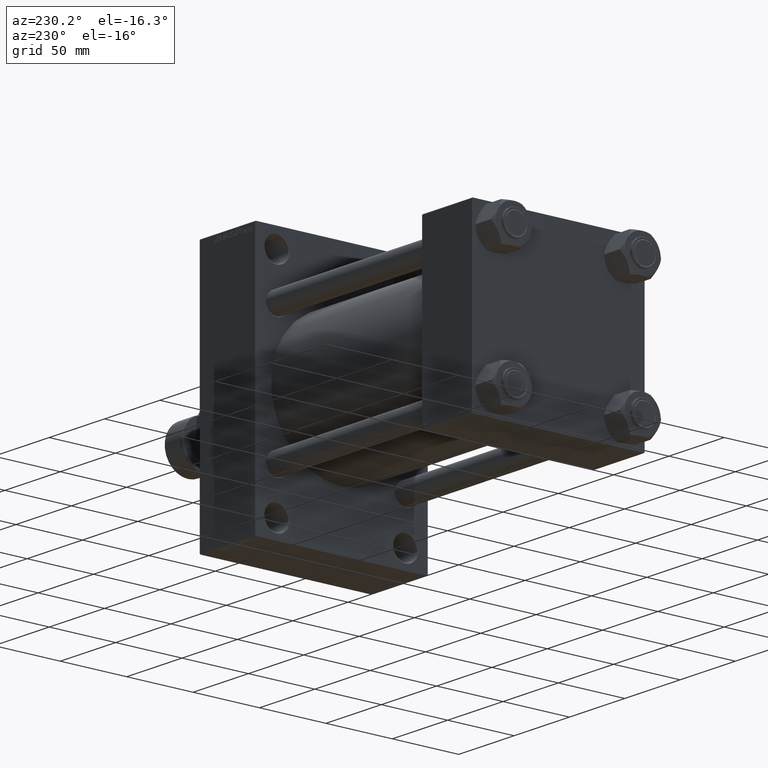
[diagram: clean part render]
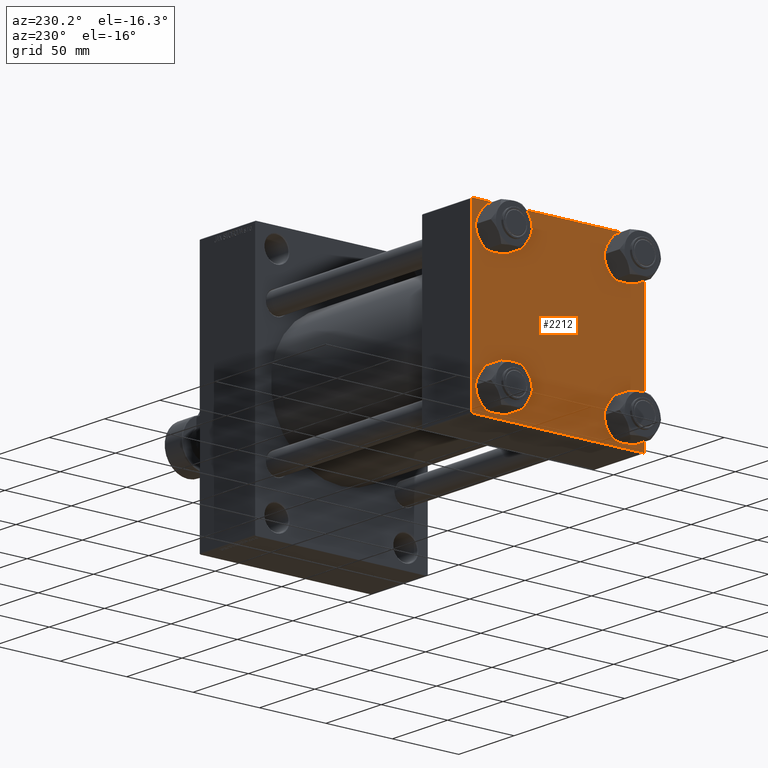
[diagram: same view with one face highlighted and labeled with its STEP entity id]
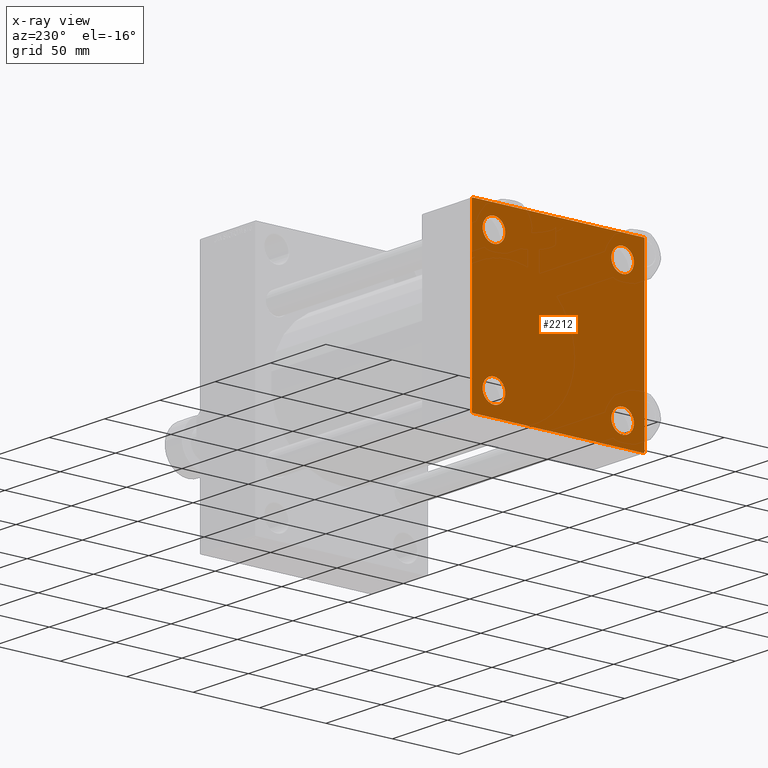
[diagram: x-ray of the same camera — body ghosted, the highlighted face saturated]
A machine part, auxiliary view. The second image highlights one B-rep face of the part: STEP entity #2212.
The next image is the same camera in x-ray: the body ghosted, the highlighted face saturated — about 0% of this face is hidden behind the body in this view.
In plain terms, the highlighted planar face has unit normal (-1, 0, 0).
Its self-contained STEP definition (entity closure, byte-faithful):
#187 = CARTESIAN_POINT ( 'NONE',  ( 0.000000000000000000, 65.00000000000000000, 65.00000000000001421 ) ) ;
#310 = EDGE_LOOP ( 'NONE', ( #4905, #21595 ) ) ;
#564 = CARTESIAN_POINT ( 'NONE',  ( 0.000000000000000000, 64.74999999999998579, 64.74999999999998579 ) ) ;
#643 = DIRECTION ( 'NONE',  ( -0.000000000000000000, -0.7071067811865474617, -0.7071067811865474617 ) ) ;
#762 = CARTESIAN_POINT ( 'NONE',  ( 0.000000000000000000, -48.44999999999999574, 39.95000000000001705 ) ) ;
#1064 = ORIENTED_EDGE ( 'NONE', *, *, #29486, .T. ) ;
#1510 = VECTOR ( 'NONE', #27750, 1000.000000000000000 ) ;
#2174 = DIRECTION ( 'NONE',  ( 0.000000000000000000, 0.000000000000000000, 1.000000000000000000 ) ) ;
#2212 = ADVANCED_FACE ( 'NONE', ( #14462, #44852, #44142, #25655, #41181 ), #7847, .T. ) ;
#2849 = ORIENTED_EDGE ( 'NONE', *, *, #7604, .F. ) ;
#3116 = VERTEX_POINT ( 'NONE', #7634 ) ;
#3293 = LINE ( 'NONE', #40262, #6403 ) ;
#3972 = EDGE_CURVE ( 'NONE', #7778, #38552, #16832, .T. ) ;
#4086 = LINE ( 'NONE', #7724, #42636 ) ;
#4495 = DIRECTION ( 'NONE',  ( 1.000000000000000000, -0.000000000000000000, 0.000000000000000000 ) ) ;
#4550 = CARTESIAN_POINT ( 'NONE',  ( 0.000000000000000000, 64.49999999999997158, -64.99999999999998579 ) ) ;
#4605 = CARTESIAN_POINT ( 'NONE',  ( -0.000000000000000000, -64.74999999999819522, 64.75000000000179057 ) ) ;
#4905 = ORIENTED_EDGE ( 'NONE', *, *, #25288, .T. ) ;
#4933 = DIRECTION ( 'NONE',  ( 0.000000000000000000, 0.000000000000000000, 1.000000000000000000 ) ) ;
#5124 = CARTESIAN_POINT ( 'NONE',  ( 0.000000000000000000, -64.75000000000176215, -64.74999999999816680 ) ) ;
#5332 = AXIS2_PLACEMENT_3D ( 'NONE', #33474, #4495, #15224 ) ;
#5386 = EDGE_CURVE ( 'NONE', #39507, #46202, #41532, .T. ) ;
#5774 = VECTOR ( 'NONE', #38877, 1000.000000000000000 ) ;
#6220 = EDGE_CURVE ( 'NONE', #36985, #44154, #35557, .T. ) ;
#6403 = VECTOR ( 'NONE', #22501, 1000.000000000000000 ) ;
#6736 = VERTEX_POINT ( 'NONE', #10566 ) ;
#6927 = VERTEX_POINT ( 'NONE', #34617 ) ;
#7138 = DIRECTION ( 'NONE',  ( -1.000000000000000000, 0.000000000000000000, -0.000000000000000000 ) ) ;
#7452 = ORIENTED_EDGE ( 'NONE', *, *, #44868, .T. ) ;
#7528 = AXIS2_PLACEMENT_3D ( 'NONE', #23517, #38337, #42230 ) ;
#7604 = EDGE_CURVE ( 'NONE', #30514, #27955, #4086, .T. ) ;
#7634 = CARTESIAN_POINT ( 'NONE',  ( 0.000000000000000000, -48.44999999999999574, -39.95000000000001705 ) ) ;
#7724 = CARTESIAN_POINT ( 'NONE',  ( 0.000000000000000000, 65.00000000000000000, 65.00000000000001421 ) ) ;
#7778 = VERTEX_POINT ( 'NONE', #28392 ) ;
#7847 = PLANE ( 'NONE',  #11387 ) ;
#7881 = EDGE_LOOP ( 'NONE', ( #33829, #27121 ) ) ;
#7956 = EDGE_CURVE ( 'NONE', #45432, #32967, #9990, .T. ) ;
#8333 = EDGE_CURVE ( 'NONE', #32967, #45432, #37941, .T. ) ;
#8742 = ORIENTED_EDGE ( 'NONE', *, *, #39950, .T. ) ;
#9760 = DIRECTION ( 'NONE',  ( 0.000000000000000000, 0.000000000000000000, 1.000000000000000000 ) ) ;
#9990 = CIRCLE ( 'NONE', #5332, 8.500000000000007105 ) ;
#10048 = EDGE_CURVE ( 'NONE', #38552, #7778, #12254, .T. ) ;
#10566 = CARTESIAN_POINT ( 'NONE',  ( 0.000000000000000000, -48.44999999999999574, -56.95000000000003837 ) ) ;
#11048 = VERTEX_POINT ( 'NONE', #44684 ) ;
#11387 = AXIS2_PLACEMENT_3D ( 'NONE', #36345, #7138, #19537 ) ;
#11818 = DIRECTION ( 'NONE',  ( 0.000000000000000000, 0.000000000000000000, 1.000000000000000000 ) ) ;
#12230 = CARTESIAN_POINT ( 'NONE',  ( 0.000000000000000000, 48.45000000000000995, -48.45000000000001705 ) ) ;
#12254 = CIRCLE ( 'NONE', #25469, 8.500000000000007105 ) ;
#13107 = EDGE_CURVE ( 'NONE', #11048, #27371, #41050, .T. ) ;
#13354 = CARTESIAN_POINT ( 'NONE',  ( 0.000000000000000000, 48.45000000000000995, 48.45000000000001705 ) ) ;
#14132 = DIRECTION ( 'NONE',  ( 1.000000000000000000, -0.000000000000000000, 0.000000000000000000 ) ) ;
#14370 = LINE ( 'NONE', #18917, #18920 ) ;
#14381 = DIRECTION ( 'NONE',  ( 0.000000000000000000, 0.000000000000000000, 1.000000000000000000 ) ) ;
#14462 = FACE_BOUND ( 'NONE', #7881, .T. ) ;
#14816 = EDGE_CURVE ( 'NONE', #6927, #44154, #16553, .T. ) ;
#15224 = DIRECTION ( 'NONE',  ( 0.000000000000000000, 0.000000000000000000, 1.000000000000000000 ) ) ;
#15841 = ORIENTED_EDGE ( 'NONE', *, *, #3972, .T. ) ;
#15910 = LINE ( 'NONE', #564, #35782 ) ;
#16553 = LINE ( 'NONE', #5124, #1510 ) ;
#16832 = CIRCLE ( 'NONE', #7528, 8.500000000000007105 ) ;
#17932 = VERTEX_POINT ( 'NONE', #4550 ) ;
#18917 = CARTESIAN_POINT ( 'NONE',  ( 0.000000000000000000, 64.74999999999997158, -64.74999999999997158 ) ) ;
#18920 = VECTOR ( 'NONE', #643, 1000.000000000000114 ) ;
#19537 = DIRECTION ( 'NONE',  ( -0.000000000000000000, 0.000000000000000000, 1.000000000000000000 ) ) ;
#19796 = ORIENTED_EDGE ( 'NONE', *, *, #6220, .F. ) ;
#20071 = AXIS2_PLACEMENT_3D ( 'NONE', #32638, #47474, #9760 ) ;
#20971 = CARTESIAN_POINT ( 'NONE',  ( 0.000000000000000000, -65.00000000000000000, 65.00000000000000000 ) ) ;
#21076 = EDGE_CURVE ( 'NONE', #6736, #3116, #47432, .T. ) ;
#21595 = ORIENTED_EDGE ( 'NONE', *, *, #21076, .T. ) ;
#21625 = EDGE_CURVE ( 'NONE', #30514, #39507, #15910, .T. ) ;
#22230 = CARTESIAN_POINT ( 'NONE',  ( 0.000000000000000000, -48.44999999999999574, 48.45000000000003126 ) ) ;
#22501 = DIRECTION ( 'NONE',  ( 0.000000000000000000, -1.000000000000000000, -1.067522139062650425E-16 ) ) ;
#22596 = EDGE_LOOP ( 'NONE', ( #22975, #34040 ) ) ;
#22746 = CIRCLE ( 'NONE', #23513, 8.500000000000007105 ) ;
#22975 = ORIENTED_EDGE ( 'NONE', *, *, #13107, .T. ) ;
#23199 = AXIS2_PLACEMENT_3D ( 'NONE', #22230, #41406, #40936 ) ;
#23513 = AXIS2_PLACEMENT_3D ( 'NONE', #26684, #23751, #11818 ) ;
#23517 = CARTESIAN_POINT ( 'NONE',  ( 0.000000000000000000, 48.45000000000000995, -48.45000000000001705 ) ) ;
#23751 = DIRECTION ( 'NONE',  ( 1.000000000000000000, -0.000000000000000000, 0.000000000000000000 ) ) ;
#25223 = ORIENTED_EDGE ( 'NONE', *, *, #10048, .T. ) ;
#25288 = EDGE_CURVE ( 'NONE', #3116, #6736, #22746, .T. ) ;
#25469 = AXIS2_PLACEMENT_3D ( 'NONE', #12230, #35566, #4933 ) ;
#25655 = FACE_BOUND ( 'NONE', #22596, .T. ) ;
#25952 = AXIS2_PLACEMENT_3D ( 'NONE', #13354, #47658, #2174 ) ;
#26536 = EDGE_LOOP ( 'NONE', ( #31183, #7452, #8742, #40683, #19796, #1064, #2849, #31248 ) ) ;
#26684 = CARTESIAN_POINT ( 'NONE',  ( 0.000000000000000000, -48.44999999999999574, -48.45000000000003126 ) ) ;
#27121 = ORIENTED_EDGE ( 'NONE', *, *, #7956, .T. ) ;
#27371 = VERTEX_POINT ( 'NONE', #33664 ) ;
#27633 = CARTESIAN_POINT ( 'NONE',  ( 0.000000000000000000, -48.44999999999999574, 56.95000000000003837 ) ) ;
#27750 = DIRECTION ( 'NONE',  ( 0.000000000000000000, -0.7071067811865279218, 0.7071067811865671127 ) ) ;
#27955 = VERTEX_POINT ( 'NONE', #46118 ) ;
#28392 = CARTESIAN_POINT ( 'NONE',  ( 0.000000000000000000, 48.45000000000000995, -56.95000000000002416 ) ) ;
#28761 = DIRECTION ( 'NONE',  ( 0.000000000000000000, 0.000000000000000000, -1.000000000000000000 ) ) ;
#29486 = EDGE_CURVE ( 'NONE', #36985, #27955, #30887, .T. ) ;
#29899 = DIRECTION ( 'NONE',  ( 0.000000000000000000, 0.000000000000000000, -1.000000000000000000 ) ) ;
#30273 = DIRECTION ( 'NONE',  ( 0.000000000000000000, 0.7071067811865474617, -0.7071067811865474617 ) ) ;
#30514 = VERTEX_POINT ( 'NONE', #42856 ) ;
#30603 = DIRECTION ( 'NONE',  ( 0.000000000000000000, -1.000000000000000000, -1.067522139062650425E-16 ) ) ;
#30887 = LINE ( 'NONE', #4605, #5774 ) ;
#31104 = CARTESIAN_POINT ( 'NONE',  ( 0.000000000000000000, -65.00000000000000000, 64.50000000000000000 ) ) ;
#31183 = ORIENTED_EDGE ( 'NONE', *, *, #5386, .T. ) ;
#31248 = ORIENTED_EDGE ( 'NONE', *, *, #21625, .T. ) ;
#32263 = CARTESIAN_POINT ( 'NONE',  ( 0.000000000000000000, -65.00000000000000000, -64.49999999999991473 ) ) ;
#32480 = VECTOR ( 'NONE', #28761, 1000.000000000000000 ) ;
#32630 = CARTESIAN_POINT ( 'NONE',  ( 0.000000000000000000, -48.44999999999999574, -48.45000000000003126 ) ) ;
#32638 = CARTESIAN_POINT ( 'NONE',  ( 0.000000000000000000, 48.45000000000000995, 48.45000000000001705 ) ) ;
#32967 = VERTEX_POINT ( 'NONE', #27633 ) ;
#33474 = CARTESIAN_POINT ( 'NONE',  ( 0.000000000000000000, -48.44999999999999574, 48.45000000000003126 ) ) ;
#33664 = CARTESIAN_POINT ( 'NONE',  ( 0.000000000000000000, 48.45000000000000995, 39.95000000000000284 ) ) ;
#33829 = ORIENTED_EDGE ( 'NONE', *, *, #8333, .T. ) ;
#34040 = ORIENTED_EDGE ( 'NONE', *, *, #42296, .T. ) ;
#34617 = CARTESIAN_POINT ( 'NONE',  ( 0.000000000000000000, -64.49999999999994316, -65.00000000000000000 ) ) ;
#35557 = LINE ( 'NONE', #20971, #32480 ) ;
#35566 = DIRECTION ( 'NONE',  ( 1.000000000000000000, -0.000000000000000000, 0.000000000000000000 ) ) ;
#35782 = VECTOR ( 'NONE', #30273, 1000.000000000000114 ) ;
#36345 = CARTESIAN_POINT ( 'NONE',  ( 0.000000000000000000, 0.000000000000000000, 0.000000000000000000 ) ) ;
#36985 = VERTEX_POINT ( 'NONE', #31104 ) ;
#37941 = CIRCLE ( 'NONE', #23199, 8.500000000000007105 ) ;
#38337 = DIRECTION ( 'NONE',  ( 1.000000000000000000, -0.000000000000000000, 0.000000000000000000 ) ) ;
#38377 = CARTESIAN_POINT ( 'NONE',  ( 0.000000000000000000, 48.45000000000000995, -39.95000000000000284 ) ) ;
#38552 = VERTEX_POINT ( 'NONE', #38377 ) ;
#38666 = VECTOR ( 'NONE', #29899, 1000.000000000000000 ) ;
#38877 = DIRECTION ( 'NONE',  ( -0.000000000000000000, 0.7071067811865672237, 0.7071067811865279218 ) ) ;
#39507 = VERTEX_POINT ( 'NONE', #42093 ) ;
#39950 = EDGE_CURVE ( 'NONE', #17932, #6927, #3293, .T. ) ;
#40262 = CARTESIAN_POINT ( 'NONE',  ( 0.000000000000000000, 65.00000000000000000, -64.99999999999998579 ) ) ;
#40683 = ORIENTED_EDGE ( 'NONE', *, *, #14816, .T. ) ;
#40936 = DIRECTION ( 'NONE',  ( 0.000000000000000000, 0.000000000000000000, 1.000000000000000000 ) ) ;
#41050 = CIRCLE ( 'NONE', #20071, 8.500000000000007105 ) ;
#41181 = FACE_OUTER_BOUND ( 'NONE', #26536, .T. ) ;
#41406 = DIRECTION ( 'NONE',  ( 1.000000000000000000, -0.000000000000000000, 0.000000000000000000 ) ) ;
#41532 = LINE ( 'NONE', #187, #38666 ) ;
#42093 = CARTESIAN_POINT ( 'NONE',  ( 0.000000000000000000, 65.00000000000000000, 64.49999999999998579 ) ) ;
#42230 = DIRECTION ( 'NONE',  ( 0.000000000000000000, 0.000000000000000000, 1.000000000000000000 ) ) ;
#42296 = EDGE_CURVE ( 'NONE', #27371, #11048, #46910, .T. ) ;
#42636 = VECTOR ( 'NONE', #30603, 1000.000000000000000 ) ;
#42856 = CARTESIAN_POINT ( 'NONE',  ( 0.000000000000000000, 64.49999999999997158, 65.00000000000001421 ) ) ;
#43395 = CARTESIAN_POINT ( 'NONE',  ( 0.000000000000000000, 65.00000000000000000, -64.49999999999995737 ) ) ;
#44142 = FACE_BOUND ( 'NONE', #44168, .T. ) ;
#44154 = VERTEX_POINT ( 'NONE', #32263 ) ;
#44168 = EDGE_LOOP ( 'NONE', ( #25223, #15841 ) ) ;
#44684 = CARTESIAN_POINT ( 'NONE',  ( 0.000000000000000000, 48.45000000000000995, 56.95000000000002416 ) ) ;
#44852 = FACE_BOUND ( 'NONE', #310, .T. ) ;
#44868 = EDGE_CURVE ( 'NONE', #46202, #17932, #14370, .T. ) ;
#45105 = AXIS2_PLACEMENT_3D ( 'NONE', #32630, #14132, #14381 ) ;
#45432 = VERTEX_POINT ( 'NONE', #762 ) ;
#46118 = CARTESIAN_POINT ( 'NONE',  ( 0.000000000000000000, -64.49999999999997158, 65.00000000000000000 ) ) ;
#46202 = VERTEX_POINT ( 'NONE', #43395 ) ;
#46910 = CIRCLE ( 'NONE', #25952, 8.500000000000007105 ) ;
#47432 = CIRCLE ( 'NONE', #45105, 8.500000000000007105 ) ;
#47474 = DIRECTION ( 'NONE',  ( 1.000000000000000000, -0.000000000000000000, 0.000000000000000000 ) ) ;
#47658 = DIRECTION ( 'NONE',  ( 1.000000000000000000, -0.000000000000000000, 0.000000000000000000 ) ) ;